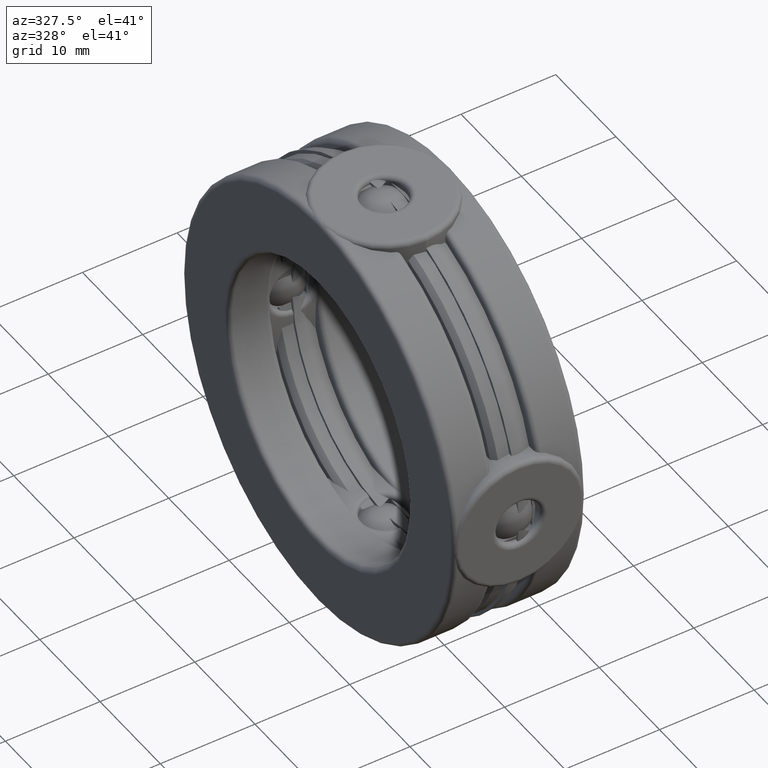
[diagram: clean part render]
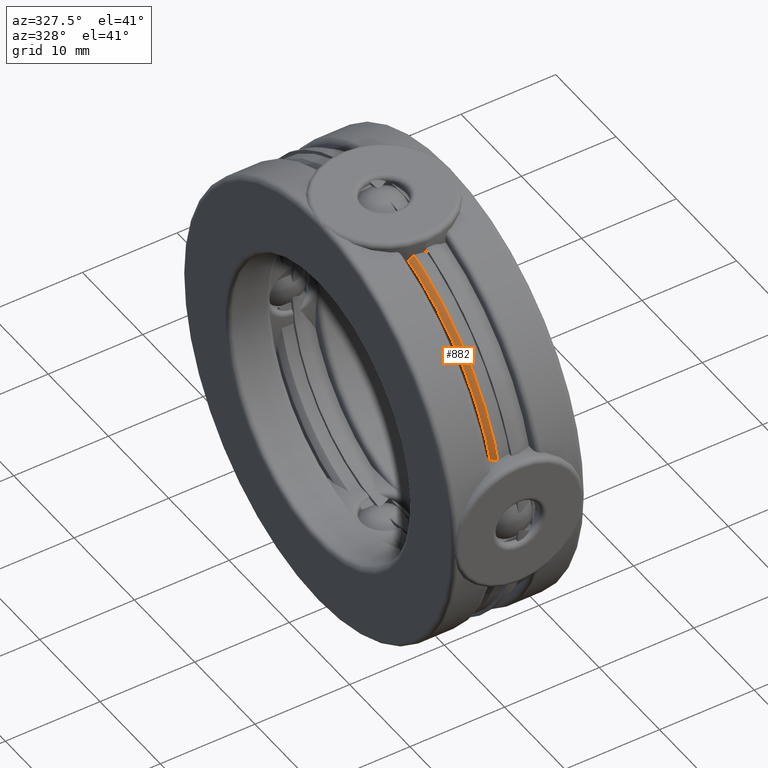
[diagram: same view with one face highlighted and labeled with its STEP entity id]
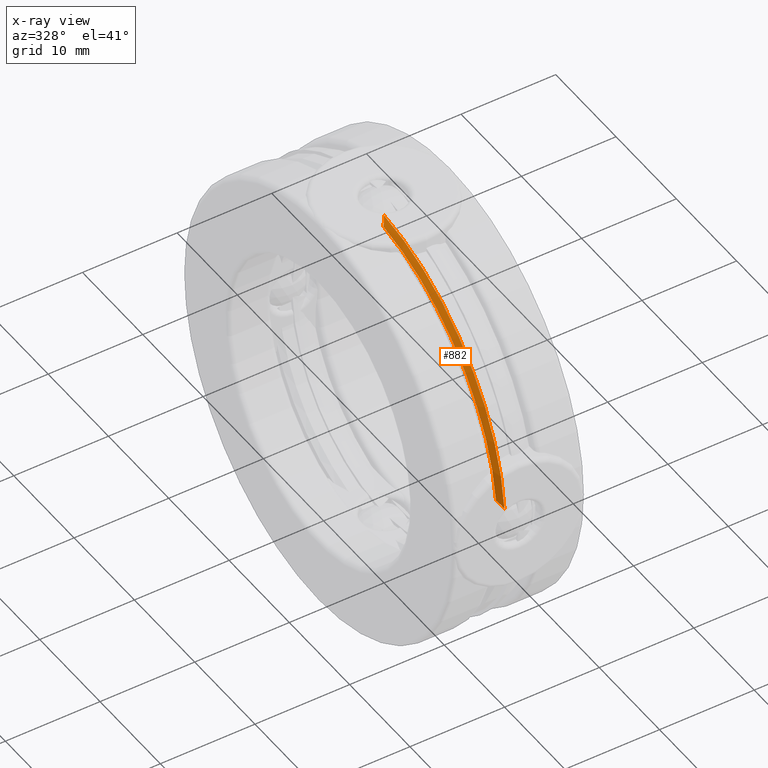
[diagram: x-ray of the same camera — body ghosted, the highlighted face saturated]
A machine part, auxiliary view. The second image highlights one B-rep face of the part: STEP entity #882.
The next image is the same camera in x-ray: the body ghosted, the highlighted face saturated — about 0% of this face is hidden behind the body in this view.
In plain terms, the highlighted conical surface has half-angle 45 deg.
Its self-contained STEP definition (entity closure, byte-faithful):
#29 = DIRECTION ( 'NONE',  ( 0.0000000000000000000, 0.0000000000000000000, -1.000000000000000000 ) ) ;
#74 = DIRECTION ( 'NONE',  ( -1.000000000000000000, -0.0000000000000000000, -0.0000000000000000000 ) ) ;
#251 = DIRECTION ( 'NONE',  ( 1.000000000000000000, 0.0000000000000000000, 0.0000000000000000000 ) ) ;
#339 = CARTESIAN_POINT ( 'NONE',  ( -0.06887500000000002000, -0.1044681951486142600, 0.8395251015916026500 ) ) ;
#364 = VERTEX_POINT ( 'NONE', #2963 ) ;
#394 = CARTESIAN_POINT ( 'NONE',  ( -0.05461868757900668900, -0.8559774775571690200, 0.08648540436833396200 ) ) ;
#415 = CARTESIAN_POINT ( 'NONE',  ( -0.04887500000000001600, 0.0000000000000000000, 0.0000000000000000000 ) ) ;
#421 = CARTESIAN_POINT ( 'NONE',  ( -0.04887500000000001600, -0.8627150778868946100, 0.07535711238237100000 ) ) ;
#690 = DIRECTION ( 'NONE',  ( -1.000000000000000000, -0.0000000000000000000, -0.0000000000000000000 ) ) ;
#698 = EDGE_CURVE ( 'NONE', #1851, #1602, #2456, .T. ) ;
#846 = AXIS2_PLACEMENT_3D ( 'NONE', #1034, #251, #29 ) ;
#882 = ADVANCED_FACE ( 'NONE', ( #3191 ), #2384, .T. ) ;
#1034 = CARTESIAN_POINT ( 'NONE',  ( -0.06887500000000002000, 0.0000000000000000000, 0.0000000000000000000 ) ) ;
#1087 = CARTESIAN_POINT ( 'NONE',  ( -0.06133424368086283500, -0.09609096571488326400, 0.8481664559376778100 ) ) ;
#1134 = CARTESIAN_POINT ( 'NONE',  ( -0.06133424368086284200, -0.8481664559376768100, 0.09609096571489213200 ) ) ;
#1162 = ORIENTED_EDGE ( 'NONE', *, *, #2723, .F. ) ;
#1333 = AXIS2_PLACEMENT_3D ( 'NONE', #2137, #690, #2181 ) ;
#1354 = CARTESIAN_POINT ( 'NONE',  ( -0.05461868757900671700, -0.08648540436832498300, 0.8559774775571698000 ) ) ;
#1588 = CARTESIAN_POINT ( 'NONE',  ( -0.06887500000000002000, -0.8395251015916016500, 0.1044681951486230600 ) ) ;
#1602 = VERTEX_POINT ( 'NONE', #421 ) ;
#1791 = EDGE_CURVE ( 'NONE', #364, #2272, #2989, .T. ) ;
#1851 = VERTEX_POINT ( 'NONE', #1588 ) ;
#1954 = ORIENTED_EDGE ( 'NONE', *, *, #1791, .T. ) ;
#1973 = ORIENTED_EDGE ( 'NONE', *, *, #2850, .T. ) ;
#2091 = DIRECTION ( 'NONE',  ( 0.0000000000000000000, 0.0000000000000000000, 1.000000000000000000 ) ) ;
#2137 = CARTESIAN_POINT ( 'NONE',  ( -0.06887500000000002000, 0.0000000000000000000, 0.0000000000000000000 ) ) ;
#2181 = DIRECTION ( 'NONE',  ( 0.0000000000000000000, 0.0000000000000000000, 1.000000000000000000 ) ) ;
#2272 = VERTEX_POINT ( 'NONE', #3197 ) ;
#2384 = CONICAL_SURFACE ( 'NONE', #846, 0.8459999999999997500, 0.7853981633974498300 ) ;
#2385 = CARTESIAN_POINT ( 'NONE',  ( -0.06887500000000002000, -0.8395251015916016500, 0.1044681951486230600 ) ) ;
#2396 = CARTESIAN_POINT ( 'NONE',  ( -0.04887500000000001600, -0.8627150778868946100, 0.07535711238237100000 ) ) ;
#2453 = CIRCLE ( 'NONE', #1333, 0.8459999999999997500 ) ;
#2456 = B_SPLINE_CURVE_WITH_KNOTS ( 'NONE', 3,
 ( #2385, #1134, #394, #2396 ),
 .UNSPECIFIED., .F., .F.,
 ( 4, 4 ),
 ( 3.735287644407723900E-007, 0.001073573918712130200 ),
 .UNSPECIFIED. ) ;
#2670 = CIRCLE ( 'NONE', #2990, 0.8659999999999998800 ) ;
#2723 = EDGE_CURVE ( 'NONE', #1851, #2272, #2453, .T. ) ;
#2816 = ORIENTED_EDGE ( 'NONE', *, *, #698, .T. ) ;
#2828 = CARTESIAN_POINT ( 'NONE',  ( -0.04887500000000001600, -0.07535711238236186800, 0.8627150778868953900 ) ) ;
#2850 = EDGE_CURVE ( 'NONE', #1602, #364, #2670, .T. ) ;
#2889 = EDGE_LOOP ( 'NONE', ( #2816, #1973, #1954, #1162 ) ) ;
#2963 = CARTESIAN_POINT ( 'NONE',  ( -0.04887500000000001600, -0.07535711238236186800, 0.8627150778868953900 ) ) ;
#2989 = B_SPLINE_CURVE_WITH_KNOTS ( 'NONE', 3,
 ( #2828, #1354, #1087, #339 ),
 .UNSPECIFIED., .F., .F.,
 ( 4, 4 ),
 ( 4.904551975000450600E-007, 0.001073690845145190100 ),
 .UNSPECIFIED. ) ;
#2990 = AXIS2_PLACEMENT_3D ( 'NONE', #415, #74, #2091 ) ;
#3191 = FACE_OUTER_BOUND ( 'NONE', #2889, .T. ) ;
#3197 = CARTESIAN_POINT ( 'NONE',  ( -0.06887500000000002000, -0.1044681951486142600, 0.8395251015916026500 ) ) ;